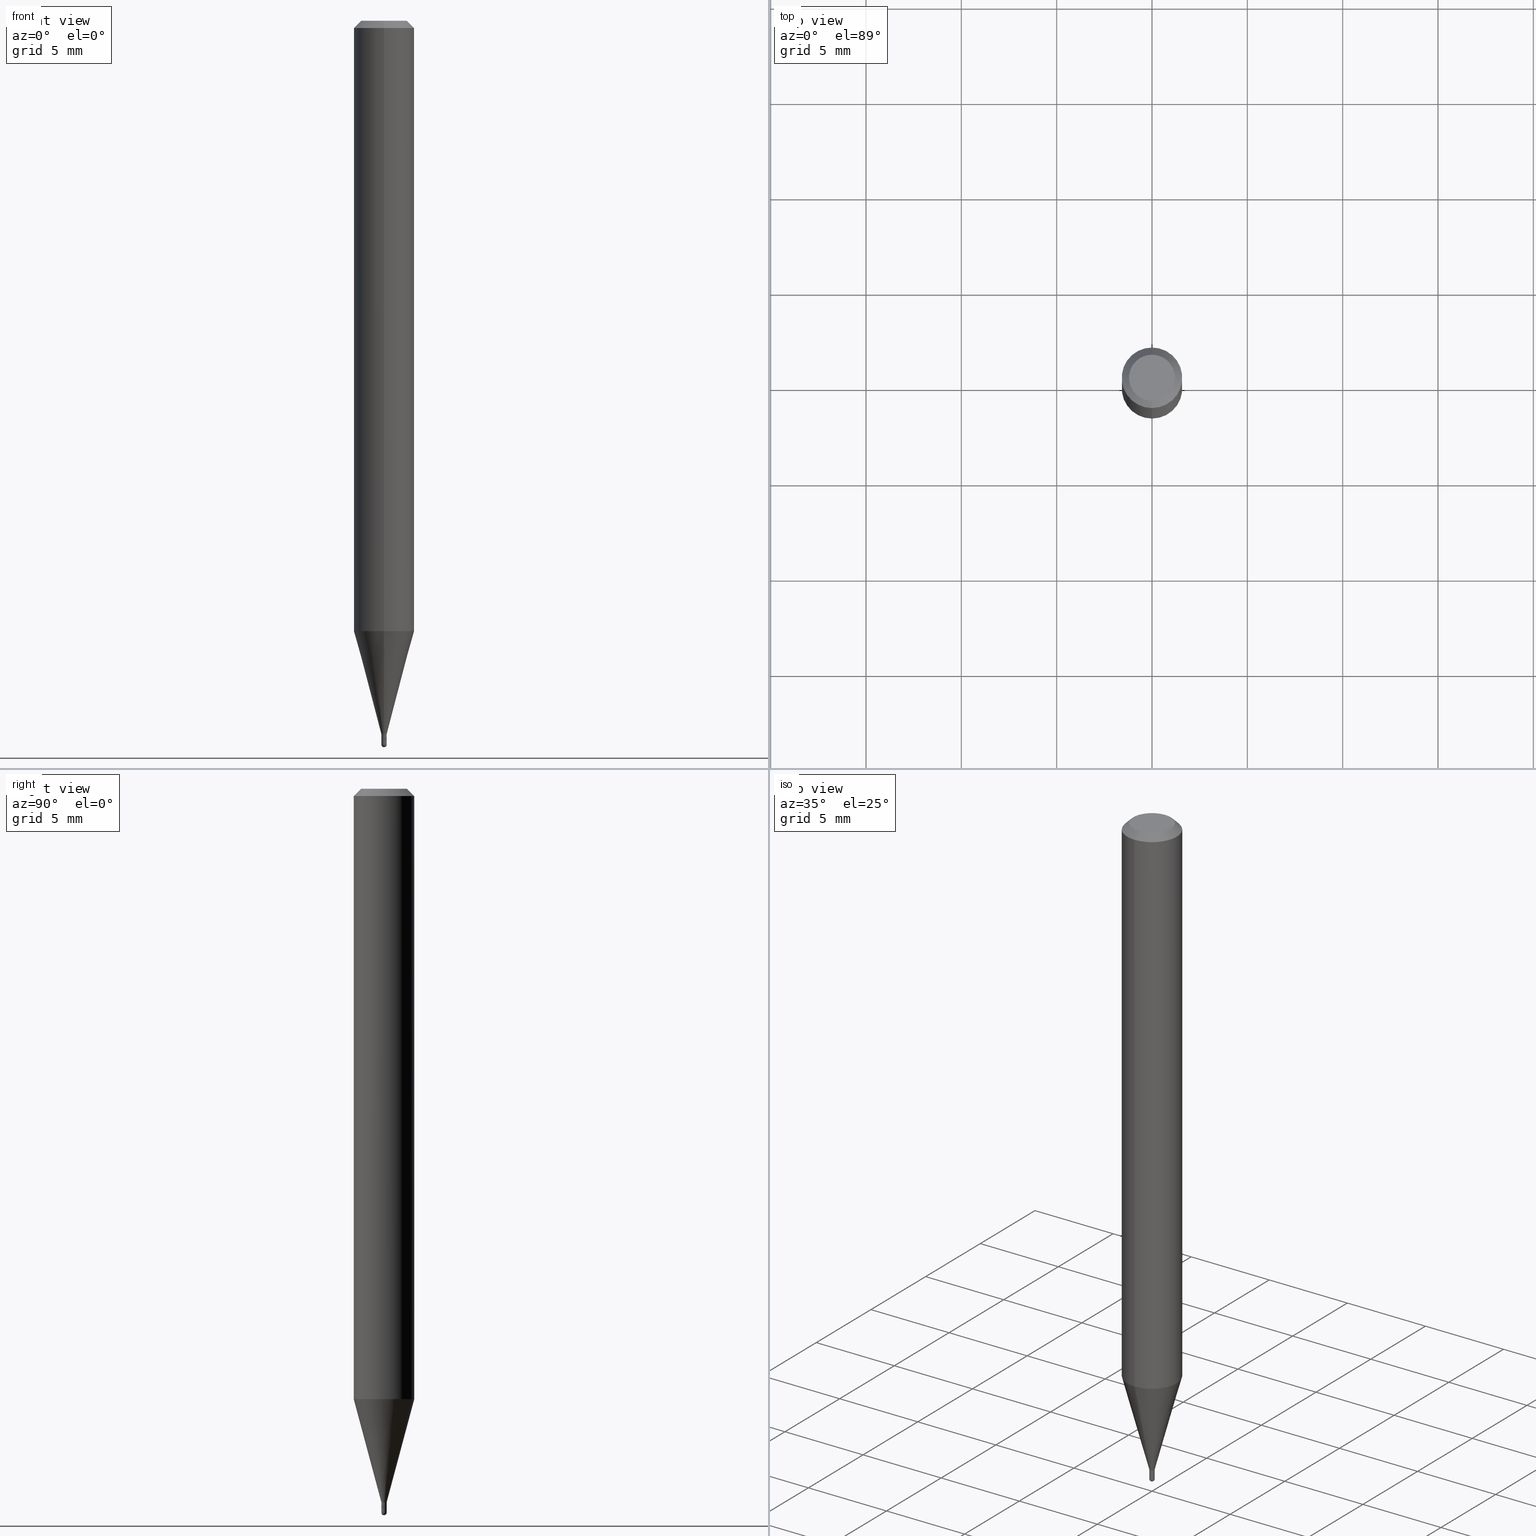
[diagram: canonical four-view strip — front | top / right | iso, engineering-drawing reading convention]
A machine part, canonical four-view strip (front | top / right | iso — engineering-drawing reading convention). The complete STEP part file that produces these views, byte-faithful:
ISO-10303-21;
HEADER;
FILE_DESCRIPTION (( 'STEP AP203' ),
    '1' );
FILE_NAME ('00746.STEP',
    '2024-03-07T18:10:52',
    ( '' ),
    ( '' ),
    'SwSTEP 2.0',
    'SolidWorks 2023',
    '' );
FILE_SCHEMA (( 'CONFIG_CONTROL_DESIGN' ));
ENDSEC;

DATA;
#1 = ORIENTED_EDGE ( 'NONE', *, *, #208, .T. ) ;
#2 = AXIS2_PLACEMENT_3D ( 'NONE', #190, #386, #233 ) ;
#3 = CARTESIAN_POINT ( 'NONE',  ( -0.005499999999999999681, 3.907985046680550795E-17, -2.705414299640198099E-31 ) ) ;
#4 = CARTESIAN_POINT ( 'NONE',  ( -4.364351673553608052E-16, -0.06250000000000439926, -1.260273103968574393 ) ) ;
#5 = FACE_OUTER_BOUND ( 'NONE', #207, .T. ) ;
#6 = VECTOR ( 'NONE', #164, 39.37007874015748143 ) ;
#7 = ADVANCED_BREP_SHAPE_REPRESENTATION ( '00746', ( #203, #184, #102 ), #259 ) ;
#8 = APPROVAL_ROLE ( '' ) ;
#9 = CC_DESIGN_PERSON_AND_ORGANIZATION_ASSIGNMENT ( #127, #292, ( #509 ) ) ;
#10 = CARTESIAN_POINT ( 'NONE',  ( -3.773273898774340269E-16, -0.04749999999999999362, 1.569833133875462794E-16 ) ) ;
#11 = ORIENTED_EDGE ( 'NONE', *, *, #302, .F. ) ;
#12 = CIRCLE ( 'NONE', #173, 0.004999999999999999237 ) ;
#13 = PERSON_AND_ORGANIZATION ( #342, #365 ) ;
#14 = CARTESIAN_POINT ( 'NONE',  ( -4.364351673553916201E-16, -0.06250000000000000000, 2.182164451147544847E-16 ) ) ;
#15 = DIRECTION ( 'NONE',  ( -6.982962677686265922E-15, -1.000000000000000000, 3.483106191921935554E-15 ) ) ;
#16 = CARTESIAN_POINT ( 'NONE',  ( 3.625426363856349074E-29, -5.176094078121976313E-15, -1.482500000000000151 ) ) ;
#17 = ORIENTED_EDGE ( 'NONE', *, *, #338, .T. ) ;
#18 = DIRECTION ( 'NONE',  ( -6.982962677686265922E-15, -1.000000000000000000, 0.000000000000000000 ) ) ;
#19 = CARTESIAN_POINT ( 'NONE',  ( 3.730349362744123537E-17, 0.004999999999994821087, -1.483000000000000096 ) ) ;
#20 = CARTESIAN_POINT ( 'NONE',  ( 0.005499999999999999681, -5.236349137930007031E-15, -1.494500000000000162 ) ) ;
#21 = CARTESIAN_POINT ( 'NONE',  ( 0.005499999999999999681, -5.216273120231659345E-15, -1.483000000000000096 ) ) ;
#22 = CARTESIAN_POINT ( 'NONE',  ( 0.000000000000000000, 0.000000000000000000, 0.000000000000000000 ) ) ;
#23 = AXIS2_PLACEMENT_3D ( 'NONE', #191, #263, #103 ) ;
#24 = EDGE_CURVE ( 'NONE', #396, #325, #77, .T. ) ;
#25 = CARTESIAN_POINT ( 'NONE',  ( 3.654282789384638190E-29, -5.218692416640612921E-15, -1.494500000000000162 ) ) ;
#26 = ORIENTED_EDGE ( 'NONE', *, *, #24, .T. ) ;
#27 = PRODUCT_DEFINITION_FORMATION_WITH_SPECIFIED_SOURCE ( 'ANY', '', #282, .NOT_KNOWN. ) ;
#28 = LOCAL_TIME ( 13, 10, 52.00000000000000000, #243 ) ;
#29 = DIRECTION ( 'NONE',  ( 6.982962677686265922E-15, 1.000000000000000000, -3.483106191921935554E-15 ) ) ;
#30 = ORIENTED_EDGE ( 'NONE', *, *, #250, .T. ) ;
#31 = CLOSED_SHELL ( 'NONE', ( #139, #288, #143, #390, #242, #253, #503, #333, #194, #492, #185, #398 ) ) ;
#32 = ORIENTED_EDGE ( 'NONE', *, *, #473, .F. ) ;
#33 = ADVANCED_FACE ( 'NONE', ( #356 ), #176, .T. ) ;
#34 = VERTEX_POINT ( 'NONE', #400 ) ;
#35 = CIRCLE ( 'NONE', #273, 0.005499999999999922486 ) ;
#36 = EDGE_LOOP ( 'NONE', ( #83, #382 ) ) ;
#37 = DIRECTION ( 'NONE',  ( 6.982962677686265922E-15, 1.000000000000000000, 0.000000000000000000 ) ) ;
#38 = CARTESIAN_POINT ( 'NONE',  ( 0.000000000000000000, 0.000000000000000000, 0.000000000000000000 ) ) ;
#39 = CARTESIAN_POINT ( 'NONE',  ( 4.440892098500625669E-16, 0.06250000000000000000, -2.182164451147544847E-16 ) ) ;
#40 = VECTOR ( 'NONE', #201, 39.37007874015748143 ) ;
#41 = CONICAL_SURFACE ( 'NONE', #23, 0.004999999999999999237, 0.7853981633974739252 ) ;
#42 = APPROVAL_STATUS ( 'not_yet_approved' ) ;
#43 = DIRECTION ( 'NONE',  ( -2.445481527053186331E-29, 3.491463121836071755E-15, 1.000000000000000000 ) ) ;
#44 = ADVANCED_FACE ( 'NONE', ( #364 ), #295, .T. ) ;
#45 =( NAMED_UNIT ( * ) PLANE_ANGLE_UNIT ( ) SI_UNIT ( $, .RADIAN. ) );
#46 = CARTESIAN_POINT ( 'NONE',  ( 0.000000000000000000, 0.000000000000000000, 0.000000000000000000 ) ) ;
#47 = DIRECTION ( 'NONE',  ( -6.982962677686265922E-15, -1.000000000000000000, 0.000000000000000000 ) ) ;
#48 = DIRECTION ( 'NONE',  ( -2.445481527053186331E-29, 3.491463121836071755E-15, 1.000000000000000000 ) ) ;
#49 = DIRECTION ( 'NONE',  ( 1.000000000000000000, -6.982962677686265922E-15, 4.876176775795936353E-29 ) ) ;
#50 = EDGE_CURVE ( 'NONE', #276, #131, #54, .T. ) ;
#51 = AXIS2_PLACEMENT_3D ( 'NONE', #107, #340, #61 ) ;
#52 = EDGE_CURVE ( 'NONE', #363, #477, #347, .T. ) ;
#53 = ORIENTED_EDGE ( 'NONE', *, *, #357, .T. ) ;
#54 = CIRCLE ( 'NONE', #358, 0.06250000000000000000 ) ;
#55 = PERSON_AND_ORGANIZATION_ROLE ( 'creator' ) ;
#56 = CARTESIAN_POINT ( 'NONE',  ( -3.840629472723789408E-17, -0.005500000000005065073, -1.473000000000000087 ) ) ;
#57 = AXIS2_PLACEMENT_3D ( 'NONE', #352, #268, #156 ) ;
#58 = DIRECTION ( 'NONE',  ( 1.000000000000000000, -6.982962677686265922E-15, 4.883557194083112340E-29 ) ) ;
#59 = ORIENTED_EDGE ( 'NONE', *, *, #64, .F. ) ;
#60 = DIRECTION ( 'NONE',  ( 5.024295867788190974E-15, 0.7071067811865681119, 0.7071067811865270336 ) ) ;
#61 = DIRECTION ( 'NONE',  ( -6.982962677686265922E-15, -1.000000000000000000, 0.000000000000000000 ) ) ;
#62 = ORIENTED_EDGE ( 'NONE', *, *, #50, .T. ) ;
#63 = CARTESIAN_POINT ( 'NONE',  ( 4.440892098500935790E-16, 0.06249999999999995143, -0.01500000000000022669 ) ) ;
#64 = EDGE_CURVE ( 'NONE', #433, #234, #138, .T. ) ;
#65 = DIRECTION ( 'NONE',  ( -6.982962677686265922E-15, -1.000000000000000000, 0.000000000000000000 ) ) ;
#66 = FACE_OUTER_BOUND ( 'NONE', #172, .T. ) ;
#67 = AXIS2_PLACEMENT_3D ( 'NONE', #168, #69, #151 ) ;
#68 = ORIENTED_EDGE ( 'NONE', *, *, #24, .F. ) ;
#69 = DIRECTION ( 'NONE',  ( -2.445468806185136597E-29, 3.491481338843145583E-15, 1.000000000000000000 ) ) ;
#70 = CARTESIAN_POINT ( 'NONE',  ( 3.668222290579782019E-31, -5.237194682754110664E-17, -0.01500000000000000812 ) ) ;
#71 = CARTESIAN_POINT ( 'NONE',  ( 3.840629472731096849E-17, 0.005499999999994776428, -1.494500000000000162 ) ) ;
#72 = ORIENTED_EDGE ( 'NONE', *, *, #158, .T. ) ;
#73 = COORDINATED_UNIVERSAL_TIME_OFFSET ( 5, 0, .BEHIND. ) ;
#74 = DATE_AND_TIME ( #369, #28 ) ;
#75 = ORIENTED_EDGE ( 'NONE', *, *, #467, .T. ) ;
#76 = CC_DESIGN_PERSON_AND_ORGANIZATION_ASSIGNMENT ( #13, #246, ( #27 ) ) ;
#77 = CIRCLE ( 'NONE', #350, 0.005499999999999999681 ) ;
#78 = ORIENTED_EDGE ( 'NONE', *, *, #486, .F. ) ;
#79 = VECTOR ( 'NONE', #414, 39.37007874015748143 ) ;
#80 = CC_DESIGN_SECURITY_CLASSIFICATION ( #445, ( #27 ) ) ;
#81 = CIRCLE ( 'NONE', #336, 0.005499999999999999681 ) ;
#82 = CC_DESIGN_APPROVAL ( #305, ( #509 ) ) ;
#83 = ORIENTED_EDGE ( 'NONE', *, *, #117, .T. ) ;
#84 = DATE_AND_TIME ( #373, #429 ) ;
#85 = SHAPE_DEFINITION_REPRESENTATION ( #502, #7 ) ;
#86 = ORIENTED_EDGE ( 'NONE', *, *, #337, .T. ) ;
#87 = FACE_OUTER_BOUND ( 'NONE', #471, .T. ) ;
#88 = DATE_AND_TIME ( #287, #165 ) ;
#89 = CARTESIAN_POINT ( 'NONE',  ( 2.166986397993857003E-46, -3.093850029295840465E-32, -8.861184899667115584E-18 ) ) ;
#90 = DIRECTION ( 'NONE',  ( 1.000000000000000000, -6.982962677686245411E-15, 0.000000000000000000 ) ) ;
#91 = AXIS2_PLACEMENT_3D ( 'NONE', #25, #58, #195 ) ;
#92 = CC_DESIGN_DATE_AND_TIME_ASSIGNMENT ( #74, #404, ( #445 ) ) ;
#93 = PLANE ( 'NONE',  #2 ) ;
#94 = DIRECTION ( 'NONE',  ( -2.445481527053186331E-29, 3.491463121836071755E-15, 1.000000000000000000 ) ) ;
#95 = COORDINATED_UNIVERSAL_TIME_OFFSET ( 5, 0, .BEHIND. ) ;
#96 = CC_DESIGN_PERSON_AND_ORGANIZATION_ASSIGNMENT ( #249, #214, ( #282 ) ) ;
#97 = DIRECTION ( 'NONE',  ( -2.445468806185136597E-29, 3.491481338843145583E-15, 1.000000000000000000 ) ) ;
#98 = UNCERTAINTY_MEASURE_WITH_UNIT (LENGTH_MEASURE( 1.000000000000000082E-05 ), #135, 'distance_accuracy_value', 'NONE');
#99 = CARTESIAN_POINT ( 'NONE',  ( 3.654753130843686882E-29, -5.218018860901081637E-15, -1.494500000000000162 ) ) ;
#100 = EDGE_CURVE ( 'NONE', #359, #396, #280, .T. ) ;
#101 = DATE_AND_TIME ( #147, #464 ) ;
#102 = AXIS2_PLACEMENT_3D ( 'NONE', #448, #217, #372 ) ;
#103 = DIRECTION ( 'NONE',  ( -6.982962677686265922E-15, -1.000000000000000000, 0.000000000000000000 ) ) ;
#104 = CARTESIAN_POINT ( 'NONE',  ( 3.654753130843686882E-29, -5.218018860901081637E-15, -1.494500000000000162 ) ) ;
#105 = ORIENTED_EDGE ( 'NONE', *, *, #52, .F. ) ;
#106 = DIRECTION ( 'NONE',  ( -2.445468806185136597E-29, 3.491481338843145583E-15, 1.000000000000000000 ) ) ;
#107 = CARTESIAN_POINT ( 'NONE',  ( 3.626649104619875629E-29, -5.177839809682895049E-15, -1.483000000000000096 ) ) ;
#108 = VERTEX_POINT ( 'NONE', #21 ) ;
#109 = CARTESIAN_POINT ( 'NONE',  ( -3.491481338839505335E-17, -0.005000000000005176519, -1.483000000000000096 ) ) ;
#110 = DIRECTION ( 'NONE',  ( 1.000000000000000000, -6.982962677686245411E-15, 0.000000000000000000 ) ) ;
#111 = CIRCLE ( 'NONE', #339, 0.005499999999999999681 ) ;
#112 = CARTESIAN_POINT ( 'NONE',  ( 0.005499999999999999681, -3.840629472727445902E-17, 2.681897226687764826E-31 ) ) ;
#113 = DIRECTION ( 'NONE',  ( -2.445481527053186331E-29, 3.491463121836071755E-15, 1.000000000000000000 ) ) ;
#114 = CC_DESIGN_PERSON_AND_ORGANIZATION_ASSIGNMENT ( #366, #215, ( #445 ) ) ;
#115 = ORIENTED_EDGE ( 'NONE', *, *, #231, .T. ) ;
#116 = CC_DESIGN_APPROVAL ( #507, ( #445 ) ) ;
#117 = EDGE_CURVE ( 'NONE', #108, #463, #157, .T. ) ;
#118 = DIRECTION ( 'NONE',  ( -2.445481527053186331E-29, 3.491463121836071755E-15, 1.000000000000000000 ) ) ;
#119 = DIRECTION ( 'NONE',  ( -2.445481527053186331E-29, 3.491463121836071755E-15, 1.000000000000000000 ) ) ;
#120 = ORIENTED_EDGE ( 'NONE', *, *, #440, .F. ) ;
#121 = DIRECTION ( 'NONE',  ( 6.982962677686265922E-15, 1.000000000000000000, -3.491463121836071755E-15 ) ) ;
#122 = AXIS2_PLACEMENT_3D ( 'NONE', #196, #119, #123 ) ;
#123 = DIRECTION ( 'NONE',  ( -6.982962677686265922E-15, -1.000000000000000000, 3.491463121836071360E-15 ) ) ;
#124 = AXIS2_PLACEMENT_3D ( 'NONE', #330, #335, #411 ) ;
#125 = EDGE_CURVE ( 'NONE', #175, #276, #466, .T. ) ;
#126 = ORIENTED_EDGE ( 'NONE', *, *, #432, .F. ) ;
#127 = PERSON_AND_ORGANIZATION ( #342, #365 ) ;
#128 = EDGE_LOOP ( 'NONE', ( #248, #53, #286, #323 ) ) ;
#129 = ORIENTED_EDGE ( 'NONE', *, *, #407, .T. ) ;
#130 = FACE_OUTER_BOUND ( 'NONE', #341, .T. ) ;
#131 = VERTEX_POINT ( 'NONE', #63 ) ;
#132 = CONICAL_SURFACE ( 'NONE', #221, 0.005499999999999922486, 0.2617993877991502960 ) ;
#133 = EDGE_CURVE ( 'NONE', #160, #276, #499, .T. ) ;
#134 = DIRECTION ( 'NONE',  ( -2.445481527053186331E-29, 3.491463121836071755E-15, 1.000000000000000000 ) ) ;
#135 =( CONVERSION_BASED_UNIT ( 'INCH', #481 ) LENGTH_UNIT ( ) NAMED_UNIT ( #318 ) );
#136 = VERTEX_POINT ( 'NONE', #19 ) ;
#137 = DIRECTION ( 'NONE',  ( 1.839019923739600315E-15, 0.2588190451025249583, 0.9659258262890670910 ) ) ;
#138 = CIRCLE ( 'NONE', #198, 0.005499999999999922486 ) ;
#139 = ADVANCED_FACE ( 'NONE', ( #354 ), #468, .T. ) ;
#140 = CIRCLE ( 'NONE', #425, 0.04749999999999999362 ) ;
#141 = AXIS2_PLACEMENT_3D ( 'NONE', #89, #167, #274 ) ;
#142 = CARTESIAN_POINT ( 'NONE',  ( 3.907985046684097588E-17, 0.005499999999994779898, -1.473000000000000087 ) ) ;
#143 = ADVANCED_FACE ( 'NONE', ( #66 ), #254, .T. ) ;
#144 = APPROVAL_PERSON_ORGANIZATION ( #368, #305, #169 ) ;
#145 = CARTESIAN_POINT ( 'NONE',  ( 3.667968038548181110E-29, -5.237558786134484607E-15, -1.500000000000000222 ) ) ;
#146 = DIRECTION ( 'NONE',  ( -2.445481527053186331E-29, 3.491463121836071755E-15, 1.000000000000000000 ) ) ;
#147 = CALENDAR_DATE ( 2024, 7, 3 ) ;
#148 = VECTOR ( 'NONE', #94, 39.37007874015748143 ) ;
#149 = APPROVAL_DATE_TIME ( #101, #507 ) ;
#150 = DIRECTION ( 'NONE',  ( 6.982962677686265922E-15, 1.000000000000000000, -3.483106191921935554E-15 ) ) ;
#151 = DIRECTION ( 'NONE',  ( 1.000000000000000000, -6.982962677686245411E-15, 0.000000000000000000 ) ) ;
#152 = ORIENTED_EDGE ( 'NONE', *, *, #307, .T. ) ;
#153 = EDGE_CURVE ( 'NONE', #363, #136, #470, .T. ) ;
#154 = CARTESIAN_POINT ( 'NONE',  ( 3.668222290579782019E-31, -5.237194682754110664E-17, -0.01500000000000000812 ) ) ;
#155 = DIRECTION ( 'NONE',  ( -7.105427357601001070E-15, -1.000000000000000000, 0.000000000000000000 ) ) ;
#156 = DIRECTION ( 'NONE',  ( -6.982962677686265922E-15, -1.000000000000000000, 4.370956789862821150E-15 ) ) ;
#157 = CIRCLE ( 'NONE', #291, 0.005499999999999999681 ) ;
#158 = EDGE_CURVE ( 'NONE', #353, #439, #111, .T. ) ;
#159 = CARTESIAN_POINT ( 'NONE',  ( 3.316907271900976096E-16, 0.04749999999999999362, -1.702750907370469427E-16 ) ) ;
#160 = VERTEX_POINT ( 'NONE', #4 ) ;
#161 = DIRECTION ( 'NONE',  ( -1.000000000000000000, 7.105427357601001070E-15, -4.926315508542082329E-29 ) ) ;
#162 = VECTOR ( 'NONE', #134, 39.37007874015748143 ) ;
#163 =( NAMED_UNIT ( * ) SI_UNIT ( $, .STERADIAN. ) SOLID_ANGLE_UNIT ( ) );
#164 = DIRECTION ( 'NONE',  ( -1.807323732225330139E-15, -0.2588190451025181860, 0.9659258262890689783 ) ) ;
#165 = LOCAL_TIME ( 13, 10, 52.00000000000000000, #73 ) ;
#166 = DIRECTION ( 'NONE',  ( 1.000000000000000000, -6.982962677686245411E-15, 0.000000000000000000 ) ) ;
#167 = DIRECTION ( 'NONE',  ( -2.445481527053186331E-29, 3.491463121836071755E-15, 1.000000000000000000 ) ) ;
#168 = CARTESIAN_POINT ( 'NONE',  ( 3.626630239572558053E-29, -5.177866825504385478E-15, -1.483000000000000096 ) ) ;
#169 = APPROVAL_ROLE ( '' ) ;
#170 = CALENDAR_DATE ( 2024, 7, 3 ) ;
#171 = DIRECTION ( 'NONE',  ( -6.982962677686265922E-15, -1.000000000000000000, 0.000000000000000000 ) ) ;
#172 = EDGE_LOOP ( 'NONE', ( #230, #427, #62, #322 ) ) ;
#173 = AXIS2_PLACEMENT_3D ( 'NONE', #462, #202, #171 ) ;
#174 = EDGE_LOOP ( 'NONE', ( #346, #177, #152, #444 ) ) ;
#175 = VERTEX_POINT ( 'NONE', #10 ) ;
#176 = SPHERICAL_SURFACE ( 'NONE', #377, 0.005499999999999991007 ) ;
#177 = ORIENTED_EDGE ( 'NONE', *, *, #302, .T. ) ;
#178 = APPROVAL_DATE_TIME ( #84, #305 ) ;
#179 = FACE_OUTER_BOUND ( 'NONE', #367, .T. ) ;
#180 = ADVANCED_FACE ( 'NONE', ( #258 ), #93, .F. ) ;
#181 = CONICAL_SURFACE ( 'NONE', #51, 0.004999999999999999237, 0.7853981633974739252 ) ;
#182 = FACE_OUTER_BOUND ( 'NONE', #238, .T. ) ;
#183 = CC_DESIGN_APPROVAL ( #269, ( #27 ) ) ;
#184 = MANIFOLD_SOLID_BREP ( 'Body-Move/Copy2[2]', #31 ) ;
#185 = ADVANCED_FACE ( 'NONE', ( #186 ), #181, .T. ) ;
#186 = FACE_OUTER_BOUND ( 'NONE', #241, .T. ) ;
#187 = DIRECTION ( 'NONE',  ( -6.982962677686265922E-15, -1.000000000000000000, 3.483106191921935554E-15 ) ) ;
#188 = DIRECTION ( 'NONE',  ( 2.445481527053186331E-29, -3.491463121836071755E-15, -1.000000000000000000 ) ) ;
#189 = APPROVAL_PERSON_ORGANIZATION ( #480, #269, #245 ) ;
#190 = CARTESIAN_POINT ( 'NONE',  ( 3.840629472731072813E-17, 0.005499999999994821531, -1.483000000000000096 ) ) ;
#191 = CARTESIAN_POINT ( 'NONE',  ( 3.626649104619875629E-29, -5.177839809682895049E-15, -1.483000000000000096 ) ) ;
#192 = DIRECTION ( 'NONE',  ( -1.000000000000000000, 6.982962677686265922E-15, -4.883557194083112901E-29 ) ) ;
#193 = LINE ( 'NONE', #112, #257 ) ;
#194 = ADVANCED_FACE ( 'NONE', ( #461 ), #493, .F. ) ;
#195 = DIRECTION ( 'NONE',  ( 6.982962677686265133E-15, 1.000000000000000000, 0.000000000000000000 ) ) ;
#196 = CARTESIAN_POINT ( 'NONE',  ( 0.000000000000000000, 0.000000000000000000, 0.000000000000000000 ) ) ;
#197 = CARTESIAN_POINT ( 'NONE',  ( -3.840629472727392284E-17, -0.005499999999999922486, 1.920304717009812227E-17 ) ) ;
#198 = AXIS2_PLACEMENT_3D ( 'NONE', #491, #310, #18 ) ;
#199 = ORIENTED_EDGE ( 'NONE', *, *, #451, .F. ) ;
#200 = CIRCLE ( 'NONE', #67, 0.005499999999999999681 ) ;
#201 = DIRECTION ( 'NONE',  ( -2.445481527053186331E-29, 3.491463121836071755E-15, 1.000000000000000000 ) ) ;
#202 = DIRECTION ( 'NONE',  ( -2.445481527053186331E-29, 3.491463121836071755E-15, 1.000000000000000000 ) ) ;
#203 = MANIFOLD_SOLID_BREP ( 'Body-Move/Copy2[1]', #224 ) ;
#204 = CARTESIAN_POINT ( 'NONE',  ( 3.626649104619875629E-29, -5.177839809682895049E-15, -1.483000000000000096 ) ) ;
#205 = ORIENTED_EDGE ( 'NONE', *, *, #432, .T. ) ;
#206 = CARTESIAN_POINT ( 'NONE',  ( -4.364351673553912750E-16, -0.06250000000000005551, -0.01499999999999979128 ) ) ;
#207 = EDGE_LOOP ( 'NONE', ( #469, #320, #392, #11 ) ) ;
#208 = EDGE_CURVE ( 'NONE', #325, #353, #380, .T. ) ;
#209 = AXIS2_PLACEMENT_3D ( 'NONE', #22, #106, #232 ) ;
#210 = VERTEX_POINT ( 'NONE', #490 ) ;
#211 = ORIENTED_EDGE ( 'NONE', *, *, #482, .T. ) ;
#212 = SECURITY_CLASSIFICATION_LEVEL ( 'unclassified' ) ;
#213 = ORIENTED_EDGE ( 'NONE', *, *, #231, .F. ) ;
#214 = PERSON_AND_ORGANIZATION_ROLE ( 'design_owner' ) ;
#215 = PERSON_AND_ORGANIZATION_ROLE ( 'classification_officer' ) ;
#216 = EDGE_LOOP ( 'NONE', ( #17, #402, #59, #32 ) ) ;
#217 = DIRECTION ( 'NONE',  ( 0.000000000000000000, 0.000000000000000000, 1.000000000000000000 ) ) ;
#218 = LINE ( 'NONE', #406, #79 ) ;
#219 = CIRCLE ( 'NONE', #141, 0.04749999999999999362 ) ;
#220 = CARTESIAN_POINT ( 'NONE',  ( 3.840629472727447874E-16, 0.04749999999999999362, -1.747056831868805136E-16 ) ) ;
#221 = AXIS2_PLACEMENT_3D ( 'NONE', #434, #428, #345 ) ;
#222 = CIRCLE ( 'NONE', #240, 0.005499999999999923353 ) ;
#223 = ORIENTED_EDGE ( 'NONE', *, *, #100, .F. ) ;
#224 = CLOSED_SHELL ( 'NONE', ( #412, #44, #180, #33, #376 ) ) ;
#225 = EDGE_LOOP ( 'NONE', ( #72, #420, #408, #458, #1 ) ) ;
#226 = AXIS2_PLACEMENT_3D ( 'NONE', #104, #421, #497 ) ;
#227 = CARTESIAN_POINT ( 'NONE',  ( 3.552713678804126066E-17, 0.004999999999994821087, -1.483000000000000096 ) ) ;
#228 = DIRECTION ( 'NONE',  ( 4.937700262164548042E-15, 0.7071067811865451302, -0.7071067811865499042 ) ) ;
#229 = CARTESIAN_POINT ( 'NONE',  ( 2.415845301584673113E-16, 0.005499999999994779898, -1.473000000000000087 ) ) ;
#230 = ORIENTED_EDGE ( 'NONE', *, *, #407, .F. ) ;
#231 = EDGE_CURVE ( 'NONE', #399, #175, #140, .T. ) ;
#232 = DIRECTION ( 'NONE',  ( 1.000000000000000000, -6.982962677686265922E-15, 4.876176775795936353E-29 ) ) ;
#233 = DIRECTION ( 'NONE',  ( -1.000000000000000000, 6.982962677686265922E-15, -4.876176775795935793E-29 ) ) ;
#234 = VERTEX_POINT ( 'NONE', #229 ) ;
#235 = CARTESIAN_POINT ( 'NONE',  ( -3.840629472723789408E-17, -0.005500000000005065073, -1.473000000000000087 ) ) ;
#236 = COORDINATED_UNIVERSAL_TIME_OFFSET ( 5, 0, .BEHIND. ) ;
#237 = CARTESIAN_POINT ( 'NONE',  ( 3.081974594797129006E-29, -4.400197065948155318E-15, -1.260273103968574615 ) ) ;
#238 = EDGE_LOOP ( 'NONE', ( #508, #494, #474, #105 ) ) ;
#239 = EDGE_LOOP ( 'NONE', ( #115, #129 ) ) ;
#240 = AXIS2_PLACEMENT_3D ( 'NONE', #298, #479, #370 ) ;
#241 = EDGE_LOOP ( 'NONE', ( #199, #438, #317, #78 ) ) ;
#242 = ADVANCED_FACE ( 'NONE', ( #311 ), #132, .T. ) ;
#243 = COORDINATED_UNIVERSAL_TIME_OFFSET ( 5, 0, .BEHIND. ) ;
#244 = ORIENTED_EDGE ( 'NONE', *, *, #153, .F. ) ;
#245 = APPROVAL_ROLE ( '' ) ;
#246 = PERSON_AND_ORGANIZATION_ROLE ( 'design_supplier' ) ;
#247 = AXIS2_PLACEMENT_3D ( 'NONE', #237, #391, #500 ) ;
#248 = ORIENTED_EDGE ( 'NONE', *, *, #64, .T. ) ;
#249 = PERSON_AND_ORGANIZATION ( #342, #365 ) ;
#250 = EDGE_CURVE ( 'NONE', #359, #353, #403, .T. ) ;
#251 = ORIENTED_EDGE ( 'NONE', *, *, #133, .F. ) ;
#252 = DIRECTION ( 'NONE',  ( -2.445468806185136597E-29, 3.491481338843145583E-15, 1.000000000000000000 ) ) ;
#253 = ADVANCED_FACE ( 'NONE', ( #316 ), #315, .T. ) ;
#254 = CONICAL_SURFACE ( 'NONE', #393, 0.06250000000000000000, 0.7853981633974483900 ) ;
#255 = FACE_OUTER_BOUND ( 'NONE', #505, .T. ) ;
#256 = CIRCLE ( 'NONE', #410, 0.06250000000000000000 ) ;
#257 = VECTOR ( 'NONE', #389, 39.37007874015748143 ) ;
#258 = FACE_OUTER_BOUND ( 'NONE', #36, .T. ) ;
#259 =( GEOMETRIC_REPRESENTATION_CONTEXT ( 3 ) GLOBAL_UNCERTAINTY_ASSIGNED_CONTEXT ( ( #98 ) ) GLOBAL_UNIT_ASSIGNED_CONTEXT ( ( #135, #45, #163 ) ) REPRESENTATION_CONTEXT ( 'NONE', 'WORKASPACE' ) );
#260 = CYLINDRICAL_SURFACE ( 'NONE', #124, 0.06250000000000000000 ) ;
#261 = EDGE_CURVE ( 'NONE', #34, #160, #306, .T. ) ;
#262 = CONICAL_SURFACE ( 'NONE', #496, 0.06250000000000000000, 0.7853981633974483900 ) ;
#263 = DIRECTION ( 'NONE',  ( -2.445481527053186331E-29, 3.491463121836071755E-15, 1.000000000000000000 ) ) ;
#264 = CARTESIAN_POINT ( 'NONE',  ( 3.654753130843686882E-29, -5.218018860901081637E-15, -1.494500000000000162 ) ) ;
#265 = DIRECTION ( 'NONE',  ( -6.982962677686265922E-15, -1.000000000000000000, 0.000000000000000000 ) ) ;
#266 = EDGE_CURVE ( 'NONE', #463, #108, #200, .T. ) ;
#267 = DIRECTION ( 'NONE',  ( 1.000000000000000000, -6.982962677686245411E-15, 0.000000000000000000 ) ) ;
#268 = DIRECTION ( 'NONE',  ( -2.445481527053186331E-29, 3.491463121836071755E-15, 1.000000000000000000 ) ) ;
#269 = APPROVAL ( #441, 'UNSPECIFIED' ) ;
#270 = EDGE_LOOP ( 'NONE', ( #223, #30, #355, #68 ) ) ;
#271 = CARTESIAN_POINT ( 'NONE',  ( 2.166986397993857003E-46, -3.093850029295840465E-32, -8.861184899667115584E-18 ) ) ;
#272 = ORIENTED_EDGE ( 'NONE', *, *, #158, .F. ) ;
#273 = AXIS2_PLACEMENT_3D ( 'NONE', #485, #146, #265 ) ;
#274 = DIRECTION ( 'NONE',  ( -6.982962677686266711E-15, -1.000000000000000000, 3.491463121836072149E-15 ) ) ;
#275 = DIRECTION ( 'NONE',  ( -6.982962677686265922E-15, -1.000000000000000000, 0.000000000000000000 ) ) ;
#276 = VERTEX_POINT ( 'NONE', #206 ) ;
#277 = PERSON_AND_ORGANIZATION ( #342, #365 ) ;
#278 = FACE_OUTER_BOUND ( 'NONE', #225, .T. ) ;
#279 = CARTESIAN_POINT ( 'NONE',  ( -4.287811248607203282E-16, -0.06250000000000005551, -0.01499999999999979128 ) ) ;
#280 = CIRCLE ( 'NONE', #422, 0.005499999999999991007 ) ;
#281 = ORIENTED_EDGE ( 'NONE', *, *, #261, .T. ) ;
#282 = PRODUCT ( '00746', '00746', '', ( #476 ) ) ;
#283 = CYLINDRICAL_SURFACE ( 'NONE', #209, 0.005499999999999999681 ) ;
#284 = ORIENTED_EDGE ( 'NONE', *, *, #100, .T. ) ;
#285 = AXIS2_PLACEMENT_3D ( 'NONE', #453, #375, #327 ) ;
#286 = ORIENTED_EDGE ( 'NONE', *, *, #450, .F. ) ;
#287 = CALENDAR_DATE ( 2024, 7, 3 ) ;
#288 = ADVANCED_FACE ( 'NONE', ( #182 ), #41, .T. ) ;
#289 = ORIENTED_EDGE ( 'NONE', *, *, #450, .T. ) ;
#290 = DIRECTION ( 'NONE',  ( -1.000000000000000000, 6.982962677686265922E-15, -4.883557194083112901E-29 ) ) ;
#291 = AXIS2_PLACEMENT_3D ( 'NONE', #351, #498, #166 ) ;
#292 = PERSON_AND_ORGANIZATION_ROLE ( 'creator' ) ;
#293 = PERSON_AND_ORGANIZATION ( #342, #365 ) ;
#294 = ORIENTED_EDGE ( 'NONE', *, *, #266, .F. ) ;
#295 = SPHERICAL_SURFACE ( 'NONE', #383, 0.005499999999999991007 ) ;
#296 = COORDINATED_UNIVERSAL_TIME_OFFSET ( 5, 0, .BEHIND. ) ;
#297 = CARTESIAN_POINT ( 'NONE',  ( 0.000000000000000000, 0.000000000000000000, 0.000000000000000000 ) ) ;
#298 = CARTESIAN_POINT ( 'NONE',  ( 3.625426363856349074E-29, -5.176094078121976313E-15, -1.482500000000000151 ) ) ;
#299 = DIRECTION ( 'NONE',  ( -2.445468806185136877E-29, 3.491481338843145188E-15, 1.000000000000000000 ) ) ;
#300 = CYLINDRICAL_SURFACE ( 'NONE', #488, 0.005499999999999922486 ) ;
#302 = EDGE_CURVE ( 'NONE', #234, #433, #35, .T. ) ;
#301 = AXIS2_PLACEMENT_3D ( 'NONE', #465, #118, #65 ) ;
#303 = LOCAL_TIME ( 13, 10, 52.00000000000000000, #236 ) ;
#304 = CYLINDRICAL_SURFACE ( 'NONE', #472, 0.005499999999999999681 ) ;
#305 = APPROVAL ( #511, 'UNSPECIFIED' ) ;
#306 = CIRCLE ( 'NONE', #247, 0.06250000000000000000 ) ;
#307 = EDGE_CURVE ( 'NONE', #433, #160, #418, .T. ) ;
#308 = DIRECTION ( 'NONE',  ( -2.445481527053186331E-29, 3.491463121836071755E-15, 1.000000000000000000 ) ) ;
#309 = ORIENTED_EDGE ( 'NONE', *, *, #50, .F. ) ;
#310 = DIRECTION ( 'NONE',  ( -2.445481527053186331E-29, 3.491463121836071755E-15, 1.000000000000000000 ) ) ;
#311 = FACE_OUTER_BOUND ( 'NONE', #128, .T. ) ;
#312 = DIRECTION ( 'NONE',  ( -2.445468806185136597E-29, 3.491481338843145583E-15, 1.000000000000000000 ) ) ;
#313 = CARTESIAN_POINT ( 'NONE',  ( -0.005499999999999999681, -5.158862992735928801E-15, -1.494500000000000162 ) ) ;
#314 = DIRECTION ( 'NONE',  ( -6.982962677686266711E-15, -1.000000000000000000, 3.491463121836072149E-15 ) ) ;
#315 = CONICAL_SURFACE ( 'NONE', #301, 0.005499999999999922486, 0.2617993877991502960 ) ;
#316 = FACE_OUTER_BOUND ( 'NONE', #174, .T. ) ;
#317 = ORIENTED_EDGE ( 'NONE', *, *, #52, .T. ) ;
#318 = DIMENSIONAL_EXPONENTS ( 1.000000000000000000, 0.000000000000000000, 0.000000000000000000, 0.000000000000000000, 0.000000000000000000, 0.000000000000000000, 0.000000000000000000 ) ;
#319 = ORIENTED_EDGE ( 'NONE', *, *, #378, .T. ) ;
#320 = ORIENTED_EDGE ( 'NONE', *, *, #486, .T. ) ;
#321 = APPROVAL_DATE_TIME ( #495, #269 ) ;
#322 = ORIENTED_EDGE ( 'NONE', *, *, #337, .F. ) ;
#323 = ORIENTED_EDGE ( 'NONE', *, *, #307, .F. ) ;
#324 = CARTESIAN_POINT ( 'NONE',  ( 3.654282789384638190E-29, -5.218692416640612921E-15, -1.494500000000000162 ) ) ;
#325 = VERTEX_POINT ( 'NONE', #20 ) ;
#326 = VECTOR ( 'NONE', #343, 39.37007874015748143 ) ;
#327 = DIRECTION ( 'NONE',  ( -6.982962677686265922E-15, -1.000000000000000000, 3.491463121836071755E-15 ) ) ;
#328 = CIRCLE ( 'NONE', #385, 0.005499999999999923353 ) ;
#329 = APPROVAL_PERSON_ORGANIZATION ( #293, #507, #8 ) ;
#330 = CARTESIAN_POINT ( 'NONE',  ( 0.000000000000000000, 0.000000000000000000, 0.000000000000000000 ) ) ;
#331 = LINE ( 'NONE', #39, #148 ) ;
#332 = DIRECTION ( 'NONE',  ( -2.445481527053186331E-29, 3.491463121836071755E-15, 1.000000000000000000 ) ) ;
#333 = ADVANCED_FACE ( 'NONE', ( #489 ), #262, .T. ) ;
#334 = CARTESIAN_POINT ( 'NONE',  ( -3.840629472723779548E-17, -0.005500000000005117115, -1.482500000000000151 ) ) ;
#335 = DIRECTION ( 'NONE',  ( -2.445481527053186331E-29, 3.491463121836071755E-15, 1.000000000000000000 ) ) ;
#336 = AXIS2_PLACEMENT_3D ( 'NONE', #487, #312, #110 ) ;
#337 = EDGE_CURVE ( 'NONE', #399, #131, #384, .T. ) ;
#338 = EDGE_CURVE ( 'NONE', #477, #210, #328, .T. ) ;
#339 = AXIS2_PLACEMENT_3D ( 'NONE', #99, #97, #90 ) ;
#340 = DIRECTION ( 'NONE',  ( -2.445481527053186331E-29, 3.491463121836071755E-15, 1.000000000000000000 ) ) ;
#341 = EDGE_LOOP ( 'NONE', ( #475, #281, #501, #126 ) ) ;
#342 = PERSON ( 'UNSPECIFIED', 'UNSPECIFIED', 'UNSPECIFIED', ('UNSPECIFIED'), ('UNSPECIFIED'), ('UNSPECIFIED') ) ;
#343 = DIRECTION ( 'NONE',  ( -4.937700262164674260E-15, -0.7071067811865632269, 0.7071067811865319186 ) ) ;
#344 = CARTESIAN_POINT ( 'NONE',  ( 4.364351673553919652E-16, 0.06249999999999995143, -0.01500000000000022669 ) ) ;
#345 = DIRECTION ( 'NONE',  ( -6.982962677686265922E-15, -1.000000000000000000, 0.000000000000000000 ) ) ;
#346 = ORIENTED_EDGE ( 'NONE', *, *, #357, .F. ) ;
#347 = LINE ( 'NONE', #109, #326 ) ;
#348 = CARTESIAN_POINT ( 'NONE',  ( 3.668222290579782019E-31, -5.237194682754110664E-17, -0.01500000000000000812 ) ) ;
#349 = LINE ( 'NONE', #197, #162 ) ;
#350 = AXIS2_PLACEMENT_3D ( 'NONE', #264, #419, #267 ) ;
#351 = CARTESIAN_POINT ( 'NONE',  ( 3.626630239572558053E-29, -5.177866825504385478E-15, -1.483000000000000096 ) ) ;
#352 = CARTESIAN_POINT ( 'NONE',  ( 3.081974594797129006E-29, -4.400197065948155318E-15, -1.260273103968574615 ) ) ;
#353 = VERTEX_POINT ( 'NONE', #71 ) ;
#354 = FACE_OUTER_BOUND ( 'NONE', #216, .T. ) ;
#355 = ORIENTED_EDGE ( 'NONE', *, *, #208, .F. ) ;
#356 = FACE_OUTER_BOUND ( 'NONE', #270, .T. ) ;
#357 = EDGE_CURVE ( 'NONE', #234, #34, #447, .T. ) ;
#358 = AXIS2_PLACEMENT_3D ( 'NONE', #478, #436, #187 ) ;
#359 = VERTEX_POINT ( 'NONE', #145 ) ;
#360 = DATE_TIME_ROLE ( 'creation_date' ) ;
#361 = CC_DESIGN_PERSON_AND_ORGANIZATION_ASSIGNMENT ( #277, #55, ( #27 ) ) ;
#362 = VECTOR ( 'NONE', #60, 39.37007874015748143 ) ;
#363 = VERTEX_POINT ( 'NONE', #379 ) ;
#364 = FACE_OUTER_BOUND ( 'NONE', #504, .T. ) ;
#365 = ORGANIZATION ( 'UNSPECIFIED', 'UNSPECIFIED', '' ) ;
#366 = PERSON_AND_ORGANIZATION ( #342, #365 ) ;
#367 = EDGE_LOOP ( 'NONE', ( #289, #319, #309, #251 ) ) ;
#368 = PERSON_AND_ORGANIZATION ( #342, #365 ) ;
#369 = CALENDAR_DATE ( 2024, 7, 3 ) ;
#370 = DIRECTION ( 'NONE',  ( -6.982962677686265922E-15, -1.000000000000000000, 0.000000000000000000 ) ) ;
#371 = ORIENTED_EDGE ( 'NONE', *, *, #397, .F. ) ;
#372 = DIRECTION ( 'NONE',  ( 1.000000000000000000, 0.000000000000000000, 0.000000000000000000 ) ) ;
#373 = CALENDAR_DATE ( 2024, 7, 3 ) ;
#374 =( LENGTH_UNIT ( ) NAMED_UNIT ( * ) SI_UNIT ( $, .METRE. ) );
#375 = DIRECTION ( 'NONE',  ( -2.445481527053185770E-29, 3.491463121836071755E-15, 1.000000000000000000 ) ) ;
#376 = ADVANCED_FACE ( 'NONE', ( #87 ), #304, .T. ) ;
#377 = AXIS2_PLACEMENT_3D ( 'NONE', #324, #290, #37 ) ;
#378 = EDGE_CURVE ( 'NONE', #34, #131, #331, .T. ) ;
#379 = CARTESIAN_POINT ( 'NONE',  ( -3.491481338839505335E-17, -0.005000000000005176519, -1.483000000000000096 ) ) ;
#380 = CIRCLE ( 'NONE', #226, 0.005499999999999999681 ) ;
#381 = AXIS2_PLACEMENT_3D ( 'NONE', #38, #48, #443 ) ;
#382 = ORIENTED_EDGE ( 'NONE', *, *, #266, .T. ) ;
#383 = AXIS2_PLACEMENT_3D ( 'NONE', #446, #192, #460 ) ;
#384 = LINE ( 'NONE', #344, #506 ) ;
#385 = AXIS2_PLACEMENT_3D ( 'NONE', #16, #113, #275 ) ;
#386 = DIRECTION ( 'NONE',  ( 2.438088387897960049E-29, -3.491481338843145188E-15, -1.000000000000000000 ) ) ;
#387 = EDGE_CURVE ( 'NONE', #210, #234, #218, .T. ) ;
#388 = CARTESIAN_POINT ( 'NONE',  ( -0.005499999999999999681, -5.158862992735928801E-15, -1.483000000000000096 ) ) ;
#389 = DIRECTION ( 'NONE',  ( -2.445468806185136877E-29, 3.491481338843145188E-15, 1.000000000000000000 ) ) ;
#390 = ADVANCED_FACE ( 'NONE', ( #179 ), #260, .T. ) ;
#391 = DIRECTION ( 'NONE',  ( -2.445481527053186331E-29, 3.491463121836071755E-15, 1.000000000000000000 ) ) ;
#392 = ORIENTED_EDGE ( 'NONE', *, *, #473, .T. ) ;
#393 = AXIS2_PLACEMENT_3D ( 'NONE', #70, #395, #29 ) ;
#394 = CARTESIAN_POINT ( 'NONE',  ( 3.654282789384638190E-29, -5.218692416640612921E-15, -1.494500000000000162 ) ) ;
#395 = DIRECTION ( 'NONE',  ( 2.445481527053186331E-29, -3.491463121836071755E-15, -1.000000000000000000 ) ) ;
#396 = VERTEX_POINT ( 'NONE', #413 ) ;
#397 = EDGE_CURVE ( 'NONE', #439, #463, #484, .T. ) ;
#398 = ADVANCED_FACE ( 'NONE', ( #5 ), #300, .T. ) ;
#399 = VERTEX_POINT ( 'NONE', #220 ) ;
#400 = CARTESIAN_POINT ( 'NONE',  ( 4.440892098500932831E-16, 0.06249999999999558686, -1.260273103968574837 ) ) ;
#401 = APPLICATION_CONTEXT ( 'configuration controlled 3d designs of mechanical parts and assemblies' ) ;
#402 = ORIENTED_EDGE ( 'NONE', *, *, #387, .T. ) ;
#403 = CIRCLE ( 'NONE', #91, 0.005499999999999991007 ) ;
#404 = DATE_TIME_ROLE ( 'classification_date' ) ;
#405 = EDGE_LOOP ( 'NONE', ( #510, #213, #86, #205 ) ) ;
#406 = CARTESIAN_POINT ( 'NONE',  ( 3.907985046680495329E-17, 0.005499999999999922486, -1.920304717009812227E-17 ) ) ;
#407 = EDGE_CURVE ( 'NONE', #175, #399, #219, .T. ) ;
#408 = ORIENTED_EDGE ( 'NONE', *, *, #117, .F. ) ;
#409 = CYLINDRICAL_SURFACE ( 'NONE', #381, 0.06250000000000000000 ) ;
#410 = AXIS2_PLACEMENT_3D ( 'NONE', #348, #437, #15 ) ;
#411 = DIRECTION ( 'NONE',  ( -6.982962677686265922E-15, -1.000000000000000000, 3.491463121836071755E-15 ) ) ;
#412 = ADVANCED_FACE ( 'NONE', ( #278 ), #283, .T. ) ;
#413 = CARTESIAN_POINT ( 'NONE',  ( -3.907985046676893069E-17, -0.005500000000005213392, -1.494500000000000162 ) ) ;
#414 = DIRECTION ( 'NONE',  ( -2.445481527053186331E-29, 3.491463121836071755E-15, 1.000000000000000000 ) ) ;
#415 = VECTOR ( 'NONE', #431, 39.37007874015748143 ) ;
#416 = DESIGN_CONTEXT ( 'detailed design', #401, 'design' ) ;
#417 = AXIS2_PLACEMENT_3D ( 'NONE', #159, #430, #121 ) ;
#418 = LINE ( 'NONE', #235, #6 ) ;
#419 = DIRECTION ( 'NONE',  ( -2.445468806185136597E-29, 3.491481338843145583E-15, 1.000000000000000000 ) ) ;
#420 = ORIENTED_EDGE ( 'NONE', *, *, #397, .T. ) ;
#421 = DIRECTION ( 'NONE',  ( -2.445468806185136597E-29, 3.491481338843145583E-15, 1.000000000000000000 ) ) ;
#422 = AXIS2_PLACEMENT_3D ( 'NONE', #394, #161, #155 ) ;
#423 = LINE ( 'NONE', #227, #362 ) ;
#424 = APPLICATION_CONTEXT ( 'configuration controlled 3d designs of mechanical parts and assemblies' ) ;
#425 = AXIS2_PLACEMENT_3D ( 'NONE', #271, #308, #314 ) ;
#426 = VECTOR ( 'NONE', #137, 39.37007874015748143 ) ;
#427 = ORIENTED_EDGE ( 'NONE', *, *, #125, .T. ) ;
#428 = DIRECTION ( 'NONE',  ( -2.445481527053186331E-29, 3.491463121836071755E-15, 1.000000000000000000 ) ) ;
#429 = LOCAL_TIME ( 13, 10, 52.00000000000000000, #296 ) ;
#430 = DIRECTION ( 'NONE',  ( 2.445481527053185770E-29, -3.491463121836071755E-15, -1.000000000000000000 ) ) ;
#431 = DIRECTION ( 'NONE',  ( -4.851104656540964275E-15, -0.7071067811865500152, -0.7071067811865450192 ) ) ;
#432 = EDGE_CURVE ( 'NONE', #131, #276, #256, .T. ) ;
#433 = VERTEX_POINT ( 'NONE', #56 ) ;
#434 = CARTESIAN_POINT ( 'NONE',  ( 3.602194289349343960E-29, -5.142925178464533732E-15, -1.473000000000000087 ) ) ;
#435 = VECTOR ( 'NONE', #299, 39.37007874015748143 ) ;
#436 = DIRECTION ( 'NONE',  ( -2.445481527053186331E-29, 3.491463121836071755E-15, 1.000000000000000000 ) ) ;
#437 = DIRECTION ( 'NONE',  ( -2.445481527053186331E-29, 3.491463121836071755E-15, 1.000000000000000000 ) ) ;
#438 = ORIENTED_EDGE ( 'NONE', *, *, #440, .T. ) ;
#439 = VERTEX_POINT ( 'NONE', #313 ) ;
#440 = EDGE_CURVE ( 'NONE', #136, #363, #12, .T. ) ;
#441 = APPROVAL_STATUS ( 'not_yet_approved' ) ;
#442 = ORIENTED_EDGE ( 'NONE', *, *, #482, .F. ) ;
#443 = DIRECTION ( 'NONE',  ( -6.982962677686265922E-15, -1.000000000000000000, 3.491463121836071755E-15 ) ) ;
#444 = ORIENTED_EDGE ( 'NONE', *, *, #261, .F. ) ;
#445 = SECURITY_CLASSIFICATION ( '', '', #212 ) ;
#446 = CARTESIAN_POINT ( 'NONE',  ( 3.654282789384638190E-29, -5.218692416640612921E-15, -1.494500000000000162 ) ) ;
#447 = LINE ( 'NONE', #142, #426 ) ;
#448 = CARTESIAN_POINT ( 'NONE',  ( 0.000000000000000000, 0.000000000000000000, 0.000000000000000000 ) ) ;
#449 = DIRECTION ( 'NONE',  ( -6.982962677686265922E-15, -1.000000000000000000, 3.491463121836071360E-15 ) ) ;
#450 = EDGE_CURVE ( 'NONE', #160, #34, #454, .T. ) ;
#451 = EDGE_CURVE ( 'NONE', #136, #210, #423, .T. ) ;
#452 = APPLICATION_PROTOCOL_DEFINITION ( 'international standard', 'config_control_design', 1994, #401 ) ;
#453 = CARTESIAN_POINT ( 'NONE',  ( 3.626649104619875629E-29, -5.177839809682895049E-15, -1.483000000000000096 ) ) ;
#454 = CIRCLE ( 'NONE', #57, 0.06250000000000000000 ) ;
#455 = CC_DESIGN_DATE_AND_TIME_ASSIGNMENT ( #88, #360, ( #509 ) ) ;
#456 = PRODUCT_RELATED_PRODUCT_CATEGORY ( 'detail', '', ( #282 ) ) ;
#457 = AXIS2_PLACEMENT_3D ( 'NONE', #204, #43, #47 ) ;
#458 = ORIENTED_EDGE ( 'NONE', *, *, #467, .F. ) ;
#459 = ORIENTED_EDGE ( 'NONE', *, *, #250, .F. ) ;
#460 = DIRECTION ( 'NONE',  ( 6.982962677686265922E-15, 1.000000000000000000, 0.000000000000000000 ) ) ;
#461 = FACE_OUTER_BOUND ( 'NONE', #239, .T. ) ;
#462 = CARTESIAN_POINT ( 'NONE',  ( 3.626649104619875629E-29, -5.177839809682895049E-15, -1.483000000000000096 ) ) ;
#463 = VERTEX_POINT ( 'NONE', #388 ) ;
#464 = LOCAL_TIME ( 13, 10, 52.00000000000000000, #95 ) ;
#465 = CARTESIAN_POINT ( 'NONE',  ( 3.602194289349343960E-29, -5.142925178464533732E-15, -1.473000000000000087 ) ) ;
#466 = LINE ( 'NONE', #279, #415 ) ;
#467 = EDGE_CURVE ( 'NONE', #325, #108, #193, .T. ) ;
#468 = CYLINDRICAL_SURFACE ( 'NONE', #122, 0.005499999999999922486 ) ;
#469 = ORIENTED_EDGE ( 'NONE', *, *, #387, .F. ) ;
#470 = CIRCLE ( 'NONE', #457, 0.004999999999999999237 ) ;
#471 = EDGE_LOOP ( 'NONE', ( #371, #211, #26, #75, #294 ) ) ;
#472 = AXIS2_PLACEMENT_3D ( 'NONE', #297, #252, #49 ) ;
#473 = EDGE_CURVE ( 'NONE', #477, #433, #349, .T. ) ;
#474 = ORIENTED_EDGE ( 'NONE', *, *, #338, .F. ) ;
#475 = ORIENTED_EDGE ( 'NONE', *, *, #378, .F. ) ;
#476 = MECHANICAL_CONTEXT ( 'NONE', #424, 'mechanical' ) ;
#477 = VERTEX_POINT ( 'NONE', #334 ) ;
#478 = CARTESIAN_POINT ( 'NONE',  ( 3.668222290579782019E-31, -5.237194682754110664E-17, -0.01500000000000000812 ) ) ;
#479 = DIRECTION ( 'NONE',  ( -2.445481527053186331E-29, 3.491463121836071755E-15, 1.000000000000000000 ) ) ;
#480 = PERSON_AND_ORGANIZATION ( #342, #365 ) ;
#481 = LENGTH_MEASURE_WITH_UNIT ( LENGTH_MEASURE( 0.02539999999999999897 ), #374 );
#482 = EDGE_CURVE ( 'NONE', #439, #396, #81, .T. ) ;
#483 = APPLICATION_PROTOCOL_DEFINITION ( 'international standard', 'config_control_design', 1994, #424 ) ;
#484 = LINE ( 'NONE', #3, #435 ) ;
#485 = CARTESIAN_POINT ( 'NONE',  ( 3.602194289349343960E-29, -5.142925178464533732E-15, -1.473000000000000087 ) ) ;
#486 = EDGE_CURVE ( 'NONE', #210, #477, #222, .T. ) ;
#487 = CARTESIAN_POINT ( 'NONE',  ( 3.654753130843686882E-29, -5.218018860901081637E-15, -1.494500000000000162 ) ) ;
#488 = AXIS2_PLACEMENT_3D ( 'NONE', #46, #332, #449 ) ;
#489 = FACE_OUTER_BOUND ( 'NONE', #405, .T. ) ;
#490 = CARTESIAN_POINT ( 'NONE',  ( 3.907985046684109298E-17, 0.005499999999994729591, -1.482500000000000151 ) ) ;
#491 = CARTESIAN_POINT ( 'NONE',  ( 3.602194289349343960E-29, -5.142925178464533732E-15, -1.473000000000000087 ) ) ;
#492 = ADVANCED_FACE ( 'NONE', ( #255 ), #512, .F. ) ;
#493 = PLANE ( 'NONE',  #417 ) ;
#494 = ORIENTED_EDGE ( 'NONE', *, *, #451, .T. ) ;
#495 = DATE_AND_TIME ( #170, #303 ) ;
#496 = AXIS2_PLACEMENT_3D ( 'NONE', #154, #188, #150 ) ;
#497 = DIRECTION ( 'NONE',  ( 1.000000000000000000, -6.982962677686245411E-15, 0.000000000000000000 ) ) ;
#498 = DIRECTION ( 'NONE',  ( -2.445468806185136597E-29, 3.491481338843145583E-15, 1.000000000000000000 ) ) ;
#499 = LINE ( 'NONE', #14, #40 ) ;
#500 = DIRECTION ( 'NONE',  ( -6.982962677686265922E-15, -1.000000000000000000, 4.370956789862821150E-15 ) ) ;
#501 = ORIENTED_EDGE ( 'NONE', *, *, #133, .T. ) ;
#502 = PRODUCT_DEFINITION_SHAPE ( 'NONE', 'NONE',  #509 ) ;
#503 = ADVANCED_FACE ( 'NONE', ( #130 ), #409, .T. ) ;
#504 = EDGE_LOOP ( 'NONE', ( #459, #284, #442, #272 ) ) ;
#505 = EDGE_LOOP ( 'NONE', ( #244, #120 ) ) ;
#506 = VECTOR ( 'NONE', #228, 39.37007874015748143 ) ;
#507 = APPROVAL ( #42, 'UNSPECIFIED' ) ;
#508 = ORIENTED_EDGE ( 'NONE', *, *, #153, .T. ) ;
#509 = PRODUCT_DEFINITION ( 'UNKNOWN', '', #27, #416 ) ;
#510 = ORIENTED_EDGE ( 'NONE', *, *, #125, .F. ) ;
#511 = APPROVAL_STATUS ( 'not_yet_approved' ) ;
#512 = PLANE ( 'NONE',  #285 ) ;
ENDSEC;
END-ISO-10303-21;
